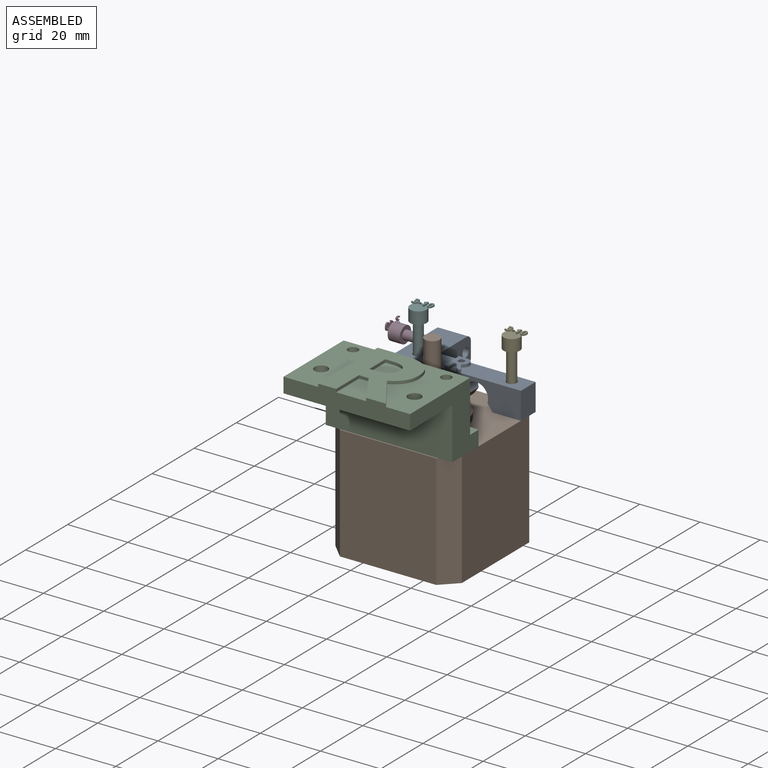
[diagram: assembled view]
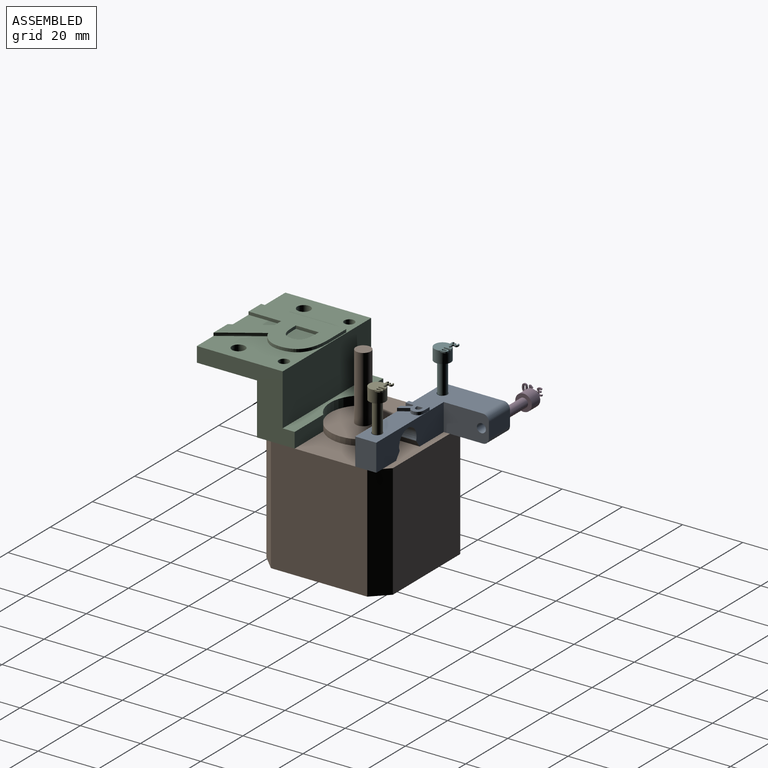
[diagram: assembled view, second angle]
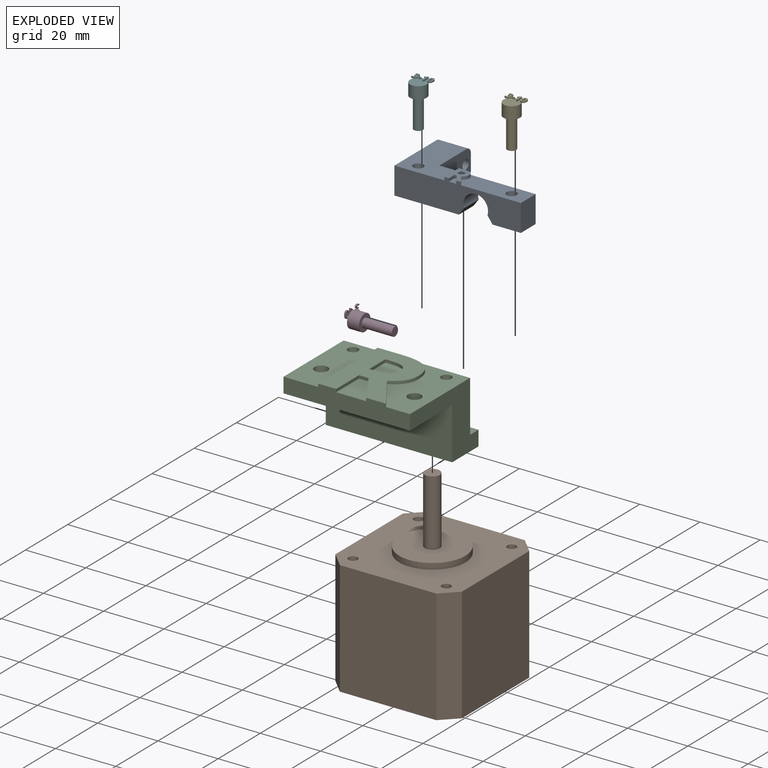
[diagram: exploded view]
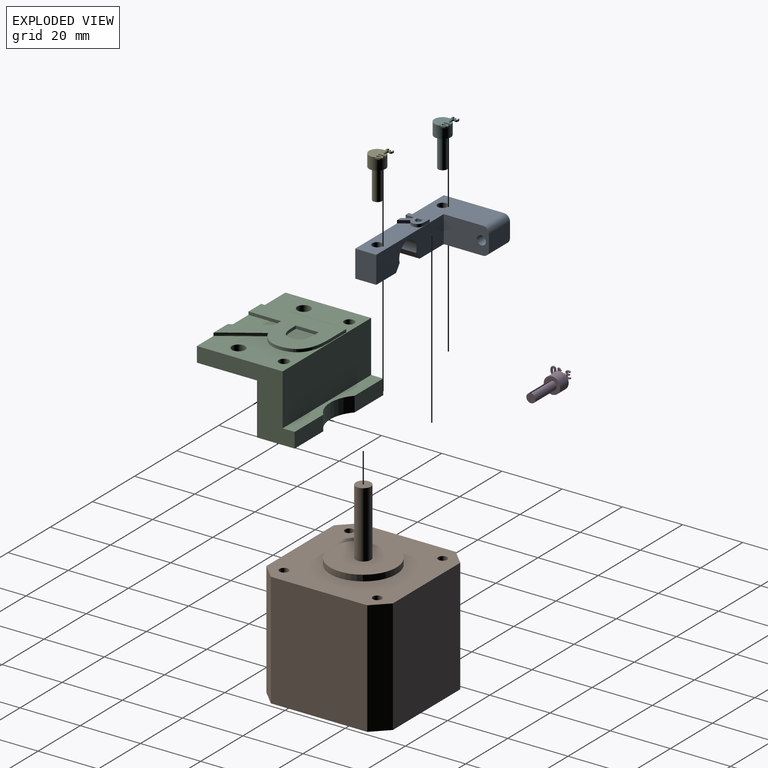
[diagram: exploded view, second angle]
ASSEMBLY  parts=6 mates=5
PART A: 37 faces, bbox 42x10x22 mm
  f0: plane 32x9mm, normal (0,0,1), area 229.2mm2, adj f1,f3,f4,f5,f8,f9,f10,f32
  f1: plane 42x20mm, normal (0,1,0), area 375.5mm2, adj f0,f4,f6,f7,f11,f12,f16,f17
  f2: plane 2.66x2.44mm, normal (0,1,0), area 4.3mm2, adj f7,f13,f14,f15
  f3: plane 9.4x7mm, normal (0,-1,0), area 57mm2, adj f0,f4,f7,f10,f11
  f4: plane 9x7mm, normal (-1,0,0), area 63mm2, adj f0,f1,f3,f7
  f5: plane 21.4x20mm, normal (0,-1,0), area 271mm2, adj f0,f6,f7,f9,f12,f32,f35
  f6: plane 22x9mm, normal (1,0,0), area 189.2mm2, adj f1,f5,f7,f33,f34,f35,f36
  f7: plane 42x10mm, normal (0,0,-1), area 322.3mm2, adj f1,f2,f3,f4,f5,f6,f8,f9
  f8: cylinder r=4.1mm len=8.2mm, axis (0,0,1), area 108.2mm2, adj f0,f7,f9,f10
  f9: plane 7x2.33mm, normal (-0.81,-0.59,0), area 20.2mm2, adj f0,f5,f7,f8
  f10: plane 7x2.33mm, normal (0.81,-0.59,0), area 20.2mm2, adj f0,f3,f7,f8
  f11: cylinder r=1.68mm len=9mm, axis (0,1,0), area 94.7mm2, adj f1,f3
  f12: cylinder r=1.68mm len=9mm, axis (0,1,0), area 94.7mm2, adj f1,f5
  f13: plane 2.66x1mm, normal (-1,0,0), area 2.7mm2, adj f2,f7,f14,f30
  f14: plane 1x0.78mm, normal (0,0,-1), area 0.8mm2, adj f2,f13,f15,f30
  f15: plane 2.66x1.66mm, normal (0.85,0,-0.53), area 3.1mm2, adj f2,f7,f14,f30
  f16: extruded ~3.02x2.04mm, area 3.6mm2, adj f1,f7,f17,f30
  f17: extruded ~1x0.95mm, area 1.2mm2, adj f1,f16,f18,f30
  f18: extruded ~1.09x1mm, area 1.2mm2, adj f1,f17,f19,f30
  f19: extruded ~1.56x1mm, area 1.8mm2, adj f1,f18,f20,f30
  f20: extruded ~2.09x1mm, area 2.2mm2, adj f1,f19,f21,f30
  f21: plane 2.02x1mm, normal (0,0,1), area 2mm2, adj f1,f20,f22,f30
  f22: plane 6.94x1mm, normal (1,0,0), area 6.9mm2, adj f1,f7,f21,f30
  f23: plane 1x0.47mm, normal (0,0,1), area 0.5mm2, adj f24,f29,f30,f31
  f24: plane 1.87x1mm, normal (-1,0,0), area 1.9mm2, adj f23,f25,f30,f31
  f25: plane 1x0.45mm, normal (0,0,-1), area 0.4mm2, adj f24,f26,f30,f31
  f26: extruded ~1.05x1mm, area 1.1mm2, adj f25,f27,f30,f31
  f27: extruded ~1x0.7mm, area 0.8mm2, adj f26,f28,f30,f31
  f28: extruded ~1x0.73mm, area 0.8mm2, adj f27,f29,f30,f31
  f29: extruded ~1.03x1mm, area 1.1mm2, adj f23,f28,f30,f31
  f30: plane 6.94x5.54mm, normal (0,1,0), area 23.5mm2, adj f7,f13,f14,f15,f16,f17,f18,f19
  f31: plane 1.87x1.84mm, normal (0,1,0), area 3mm2, adj f23,f24,f25,f26,f27,f28,f29
  f32: plane 15x9mm, normal (-1,0,0), area 126.2mm2, adj f0,f1,f5,f33,f34,f35,f36
  f33: plane 10x5mm, normal (0,0,1), area 50mm2, adj f6,f32,f35,f36
  f34: cylinder r=1.5mm len=10mm, axis (1,0,0), area 94.2mm2, adj f6,f32
  f35: cylinder r=2mm len=10mm, axis (-1,0,0), area 31.4mm2, adj f5,f6,f32,f33
  f36: cylinder r=2mm len=10mm, axis (1,0,0), area 31.4mm2, adj f1,f6,f32,f33
PART B: 22 faces, bbox 42x42x62 mm
  f0: plane 38x32mm, normal (-1,0,0), area 1216mm2, adj f4,f5,f8,f9
  f1: plane 38x32mm, normal (0,-1,0), area 1216mm2, adj f4,f5,f7,f9
  f2: plane 38x32mm, normal (1,0,0), area 1216mm2, adj f4,f5,f6,f7
  f3: plane 38x32mm, normal (0,1,0), area 1216mm2, adj f4,f5,f6,f8
  f4: plane 42x42mm, normal (0,0,1), area 1305.6mm2, adj f0,f1,f2,f3,f6,f7,f8,f9
  f5: plane 42x42mm, normal (0,0,-1), area 1714mm2, adj f0,f1,f2,f3,f6,f7,f8,f9
  f6: plane 38x5mm, normal (0.71,0.71,0), area 268.7mm2, adj f2,f3,f4,f5
  f7: plane 38x5mm, normal (0.71,-0.71,0), area 268.7mm2, adj f1,f2,f4,f5
  f8: plane 38x5mm, normal (-0.71,0.71,0), area 268.7mm2, adj f0,f3,f4,f5
  f9: plane 38x5mm, normal (-0.71,-0.71,0), area 268.7mm2, adj f0,f1,f4,f5
  f10: cylinder r=11mm len=22mm, axis (0,0,-1), area 138.2mm2, adj f4,f11
  f11: plane 22x22mm, normal (0,0,1), area 360.5mm2, adj f10,f12
  f12: cylinder r=2.5mm len=22mm, axis (0,0,-1), area 345.6mm2, adj f11,f13
  f13: plane 5x5mm, normal (0,0,1), area 19.6mm2, adj f12
  f14: cylinder r=1.5mm len=25mm, axis (0,0,1), area 235.6mm2, adj f4,f15
  f15: plane 3x3mm, normal (0,0,1), area 7.1mm2, adj f14
  f16: cylinder r=1.5mm len=25mm, axis (0,0,1), area 235.6mm2, adj f4,f17
  f17: plane 3x3mm, normal (0,0,1), area 7.1mm2, adj f16
  f18: cylinder r=1.5mm len=25mm, axis (0,0,1), area 235.6mm2, adj f4,f19
  f19: plane 3x3mm, normal (0,0,1), area 7.1mm2, adj f18
  f20: cylinder r=1.5mm len=25mm, axis (0,0,1), area 235.6mm2, adj f4,f21
  f21: plane 3x3mm, normal (0,0,1), area 7.1mm2, adj f20
PART C: 36 faces, bbox 32.5x42x23.1 mm
  f0: plane 42x28.5mm, normal (0,0,1), area 637mm2, adj f3,f8,f9,f10,f12,f14,f15,f16
  f1: plane 42x17.1mm, normal (-1,0,0), area 718.2mm2, adj f5,f8,f9,f13
  f2: plane 13.56x5mm, normal (1,0,0), area 67.8mm2, adj f5,f7,f8,f11
  f3: plane 42x17.1mm, normal (1,0,0), area 718.2mm2, adj f0,f7,f8,f9
  f4: plane 10.84x9.93mm, normal (0,0,1), area 71.1mm2, adj f14,f17,f18,f19
  f5: plane 42x12.5mm, normal (0,0,-1), area 477.2mm2, adj f1,f2,f6,f8,f9,f10,f11,f12
  f6: plane 13.56x5mm, normal (1,0,0), area 67.8mm2, adj f5,f7,f9,f11
  f7: plane 42x4mm, normal (0,0,1), area 138.4mm2, adj f2,f3,f6,f8,f9,f11
  f8: plane 32.5x22.1mm, normal (0,1,0), area 307.8mm2, adj f0,f1,f2,f3,f5,f7,f13,f14
  f9: plane 32.5x22.1mm, normal (0,-1,0), area 307.8mm2, adj f0,f1,f3,f5,f6,f7,f13,f14
  f10: cylinder r=1.7mm len=22.1mm, axis (0,0,-1), area 236.1mm2, adj f0,f5
  f11: cylinder r=11mm len=14.89mm, axis (0,0,-1), area 81.7mm2, adj f2,f5,f6,f7
  f12: cylinder r=1.7mm len=22.1mm, axis (0,0,-1), area 236.1mm2, adj f0,f5
  f13: plane 42x20mm, normal (0,0,-1), area 809.6mm2, adj f1,f8,f9,f14,f15,f16
  f14: plane 42x6mm, normal (-1,0,0), area 222.6mm2, adj f0,f4,f8,f9,f13,f17,f19,f20
  f15: cylinder r=2.2mm len=5mm, axis (0,0,1), area 69.1mm2, adj f0,f13
  f16: cylinder r=2.2mm len=5mm, axis (0,0,1), area 69.1mm2, adj f0,f13
  f17: plane 10.84x1mm, normal (0,-1,0), area 10.8mm2, adj f4,f14,f18,f34
  f18: plane 3.19x1mm, normal (-1,0,0), area 3.2mm2, adj f4,f17,f19,f34
  f19: plane 10.84x6.75mm, normal (-0.53,0.85,0), area 12.8mm2, adj f4,f14,f18,f34
  f20: extruded ~12.31x8.31mm, area 14.9mm2, adj f0,f14,f21,f34
  f21: extruded ~3.89x3.04mm, area 5mm2, adj f0,f20,f22,f34
  f22: extruded ~4.43x1.37mm, area 4.7mm2, adj f0,f21,f23,f34
  f23: extruded ~6.37x2.76mm, area 7.2mm2, adj f0,f22,f24,f34
  f24: extruded ~8.53x2.1mm, area 8.9mm2, adj f0,f23,f25,f34
  f25: plane 8.23x1mm, normal (1,0,0), area 8.2mm2, adj f0,f24,f26,f34
  f26: plane 28.26x1mm, normal (0,1,0), area 28.3mm2, adj f0,f14,f25,f34
  f27: plane 1.93x1mm, normal (1,0,0), area 1.9mm2, adj f28,f33,f34,f35
  f28: plane 7.63x1mm, normal (0,-1,0), area 7.6mm2, adj f27,f29,f34,f35
  f29: plane 1.82x1mm, normal (-1,0,0), area 1.8mm2, adj f28,f30,f34,f35
  f30: extruded ~4.28x1mm, area 4.4mm2, adj f29,f31,f34,f35
  f31: extruded ~2.86x1.38mm, area 3.3mm2, adj f30,f32,f34,f35
  f32: extruded ~2.98x1.35mm, area 3.4mm2, adj f31,f33,f34,f35
  f33: extruded ~4.2x1mm, area 4.4mm2, adj f27,f32,f34,f35
  f34: plane 28.26x22.58mm, normal (0,0,1), area 389.9mm2, adj f14,f17,f18,f19,f20,f21,f22,f23
  f35: plane 7.63x7.48mm, normal (0,0,1), area 50.4mm2, adj f27,f28,f29,f30,f31,f32,f33
PART D: 71 faces, bbox 6.6x6.3x14.5 mm
  f0: plane 5.5x5.5mm, normal (0,0,1), area 21.7mm2, adj f2,f28,f29,f30,f31,f36,f37,f38
  f1: plane 0.27x0.2mm, normal (0,0,1), area 0mm2, adj f2,f23,f24
  f2: cylinder r=2.75mm len=5.5mm, axis (0,0,-1), area 69.1mm2, adj f0,f1,f3,f6,f7,f52,f70
  f3: plane 5.5x5.5mm, normal (0,0,-1), area 16.7mm2, adj f2,f4
  f4: cylinder r=1.5mm len=10mm, axis (0,0,1), area 94.2mm2, adj f3,f5
  f5: plane 3x3mm, normal (0,0,-1), area 7.1mm2, adj f4
  f6: plane 1.75x1.58mm, normal (0,0,-1), area 1.3mm2, adj f2,f8,f9,f10,f11,f12,f13,f14
  f7: plane 0.93x0.56mm, normal (0,0,-1), area 0.3mm2, adj f2,f24,f25,f26,f27,f28
  f8: extruded ~0.5x0.38mm, area 0.2mm2, adj f6,f9,f34,f35
  f9: extruded ~0.5x0.42mm, area 0.2mm2, adj f6,f8,f10,f35
  f10: extruded ~0.59x0.5mm, area 0.3mm2, adj f6,f9,f11,f35
  f11: extruded ~0.78x0.5mm, area 0.4mm2, adj f6,f10,f12,f35
  f12: plane 0.5x0.35mm, normal (-0.83,-0.56,0), area 0.2mm2, adj f6,f11,f13,f35
  f13: extruded ~0.5x0.27mm, area 0.2mm2, adj f6,f12,f14,f35
  f14: extruded ~0.5x0.24mm, area 0.1mm2, adj f6,f13,f15,f35
  f15: extruded ~0.5x0.34mm, area 0.2mm2, adj f6,f14,f16,f35
  f16: extruded ~0.5x0.25mm, area 0.1mm2, adj f6,f15,f17,f35
  f17: extruded ~0.5x0.41mm, area 0.2mm2, adj f6,f16,f18,f35
  f18: plane 0.5x0.19mm, normal (0,1,0), area 0.1mm2, adj f6,f17,f19,f35
  f19: plane 0.5x0.39mm, normal (-1,0,0), area 0.2mm2, adj f6,f18,f20,f35
  f20: plane 0.5x0.18mm, normal (0,-1,0), area 0.1mm2, adj f6,f19,f21,f35
  f21: extruded ~0.5x0.44mm, area 0.2mm2, adj f6,f20,f22,f35
  f22: extruded ~0.5x0.24mm, area 0.1mm2, adj f6,f21,f23,f35
  f23: extruded ~0.5x0.27mm, area 0.2mm2, adj f1,f6,f22,f24,f35
  f24: extruded ~0.5x0.37mm, area 0.2mm2, adj f1,f7,f23,f25,f35
  f25: extruded ~0.5x0.33mm, area 0.2mm2, adj f7,f24,f26,f35
  f26: extruded ~0.5x0.31mm, area 0.2mm2, adj f7,f25,f27,f35
  f27: plane 0.5x0.43mm, normal (-1,0,0), area 0.2mm2, adj f7,f26,f28,f35
  f28: extruded ~0.69x0.5mm, area 0.4mm2, adj f0,f7,f27,f29,f35
  f29: extruded ~0.72x0.5mm, area 0.4mm2, adj f0,f28,f30,f35
  f30: extruded ~0.54x0.5mm, area 0.3mm2, adj f0,f29,f31,f35
  f31: extruded ~0.5x0.38mm, area 0.2mm2, adj f0,f6,f30,f32,f35
  f32: extruded ~0.5x0.44mm, area 0.2mm2, adj f6,f31,f33,f35
  f33: plane 0.5x0.01mm, normal (1,0,0), area 0mm2, adj f6,f32,f34,f35
  f34: extruded ~0.5x0.38mm, area 0.2mm2, adj f6,f8,f33,f35
  f35: plane 2.46x1.66mm, normal (0,0,1), area 2.2mm2, adj f8,f9,f10,f11,f12,f13,f14,f15
  f36: plane 0.5x0.41mm, normal (-1,0,0), area 0.2mm2, adj f0,f37,f39,f40
  f37: plane 0.88x0.5mm, normal (0,-1,0), area 0.4mm2, adj f0,f36,f38,f40
  f38: plane 0.5x0.41mm, normal (1,0,0), area 0.2mm2, adj f0,f37,f39,f40
  f39: plane 0.88x0.5mm, normal (0,1,0), area 0.4mm2, adj f0,f36,f38,f40
  f40: plane 0.88x0.41mm, normal (0,0,1), area 0.4mm2, adj f36,f37,f38,f39
  f41: plane 0.51x0.5mm, normal (0,-1,0), area 0.3mm2, adj f0,f42,f50,f51
  f42: plane 2.39x0.5mm, normal (1,0,0), area 1.2mm2, adj f0,f41,f43,f51,f52
  f43: plane 0.5x0.42mm, normal (0,1,0), area 0.2mm2, adj f42,f44,f51,f52
  f44: plane 0.77x0.61mm, normal (-0.62,0.78,0), area 0.5mm2, adj f43,f45,f51,f52
  f45: plane 0.5x0.3mm, normal (-0.78,-0.63,0), area 0.2mm2, adj f0,f44,f46,f51,f52
  f46: plane 0.5x0.28mm, normal (0.63,-0.78,0), area 0.2mm2, adj f0,f45,f47,f51,f52
  f47: extruded ~0.5x0.18mm, area 0.1mm2, adj f46,f48,f51,f52
  f48: plane 0.5x0.25mm, normal (-1,0.03,0), area 0.1mm2, adj f47,f49,f51,f52
  f49: plane 0.5x0.23mm, normal (-1,0.02,0), area 0.1mm2, adj f0,f48,f50,f51,f52
  f50: plane 1.39x0.5mm, normal (-1,0,0), area 0.7mm2, adj f0,f41,f49,f51
  f51: plane 2.39x1.19mm, normal (0,0,1), area 1.5mm2, adj f41,f42,f43,f44,f45,f46,f47,f48
  f52: plane 1.19x0.95mm, normal (0,0,-1), area 0.7mm2, adj f2,f42,f43,f44,f45,f46,f47,f48
  f53: extruded ~0.63x0.5mm, area 0.3mm2, adj f54,f68,f69,f70
  f54: extruded ~0.63x0.5mm, area 0.3mm2, adj f53,f55,f69,f70
  f55: extruded ~0.5x0.26mm, area 0.2mm2, adj f54,f56,f69,f70
  f56: extruded ~0.5x0.25mm, area 0.2mm2, adj f55,f57,f69,f70
  f57: extruded ~0.63x0.5mm, area 0.3mm2, adj f56,f58,f69,f70
  f58: extruded ~0.63x0.5mm, area 0.3mm2, adj f57,f59,f69,f70
  f59: extruded ~0.5x0.26mm, area 0.2mm2, adj f58,f68,f69,f70
  f60: extruded ~0.93x0.5mm, area 0.5mm2, adj f61,f67,f69,f70
  f61: extruded ~0.92x0.5mm, area 0.5mm2, adj f60,f62,f69,f70
  f62: extruded ~0.63x0.5mm, area 0.4mm2, adj f61,f63,f69,f70
  f63: extruded ~0.63x0.5mm, area 0.4mm2, adj f62,f64,f69,f70
  f64: extruded ~0.93x0.5mm, area 0.5mm2, adj f63,f65,f69,f70
  f65: extruded ~0.92x0.5mm, area 0.5mm2, adj f0,f64,f66,f69,f70
  f66: extruded ~0.62x0.5mm, area 0.4mm2, adj f0,f65,f67,f69
  f67: extruded ~0.63x0.5mm, area 0.4mm2, adj f0,f60,f66,f69,f70
  f68: extruded ~0.5x0.26mm, area 0.2mm2, adj f53,f59,f69,f70
  f69: plane 2.46x1.67mm, normal (0,0,1), area 2.5mm2, adj f53,f54,f55,f56,f57,f58,f59,f60
  f70: plane 2.46x1.67mm, normal (0,0,-1), area 2.1mm2, adj f2,f53,f54,f55,f56,f57,f58,f59
PART E: same geometry as D
PART F: same geometry as D
PLACE A rot(axis=(0,0.71,0.71),180deg) t=(41.48,44.37,42.14)mm
PLACE B t=(-0.52,11.37,4.14)mm
PLACE C rot(axis=(0,0,1),90deg) t=(41.48,11.77,42.14)mm
PLACE D rot(axis=(0.58,-0.58,-0.58),120deg) t=(-10.52,63.87,46.64)mm
PLACE E t=(35.98,47.87,61.14)mm
PLACE F t=(4.98,47.87,61.14)mm
MATE fastened F.f2 <-> A.f12  axis (0,0,-1) through (4.98,47.87,51.14)mm
MATE fastened C.f12 <-> B.f18  axis (0,0,-1) through (35.98,16.87,42.14)mm
MATE fastened E.f2 <-> A.f11  axis (0,0,-1) through (35.98,47.87,51.14)mm
MATE fastened D.f2 <-> A.f34  axis (1,0,0) through (-0.52,63.87,46.64)mm
MATE fastened A.f11 <-> B.f16  axis (0,0,1) through (35.98,47.87,42.14)mm
